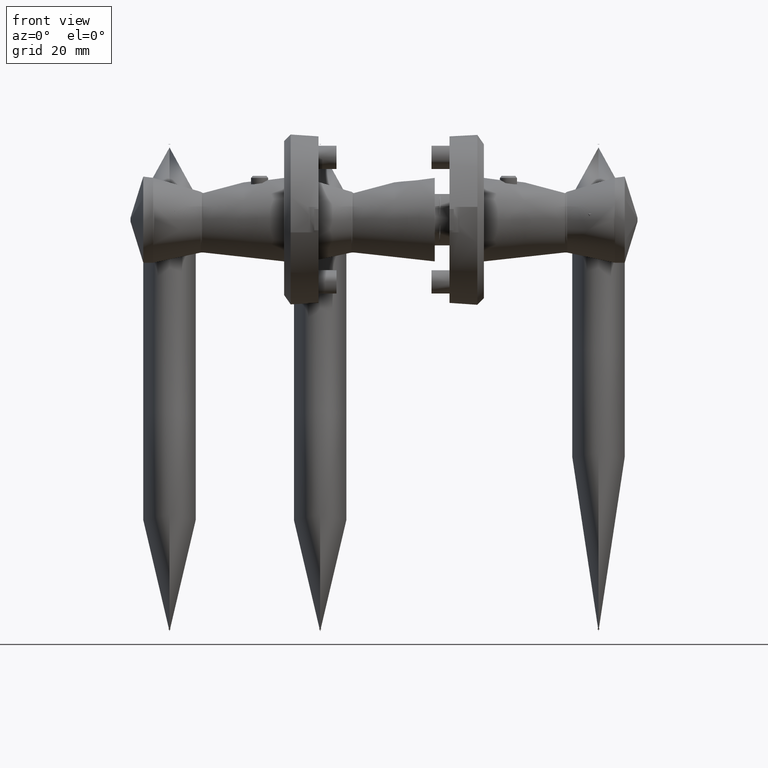
[diagram: clean part render]
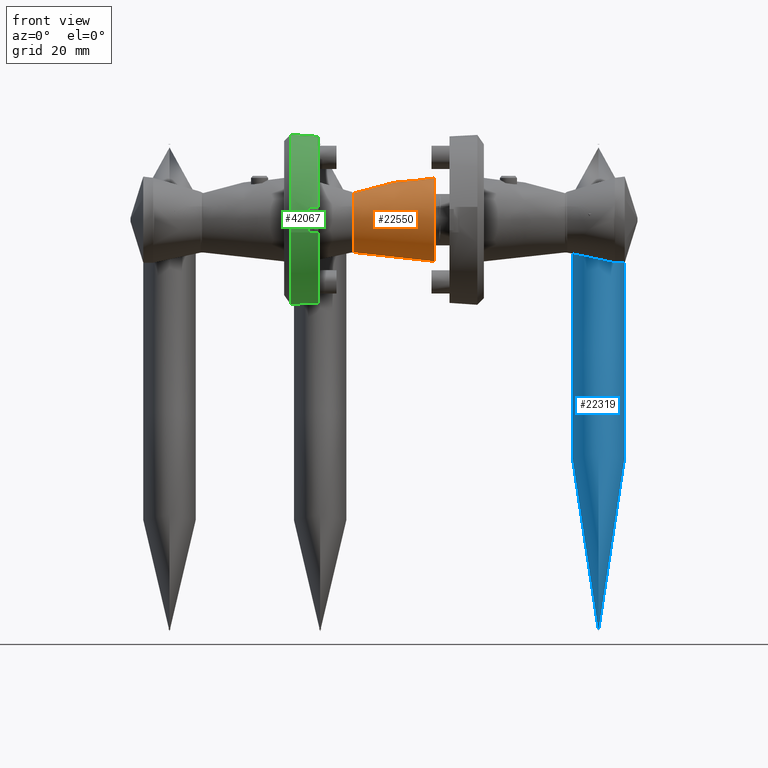
[diagram: same view with three faces highlighted in distinct colors, each labeled with its STEP entity id]
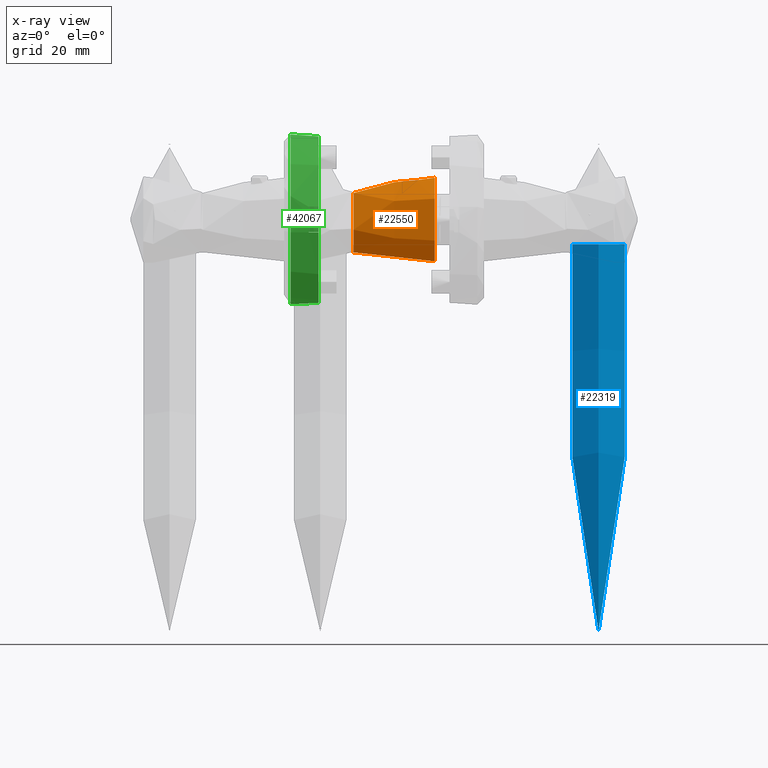
[diagram: x-ray of the same camera — body ghosted, the three highlighted faces saturated]
A machine part, front view with three faces highlighted in distinct colors.
The next image is the same camera in x-ray (body ghosted, the three faces saturated) — at least one of them is partly hidden behind the body in this view.
Their STEP definitions:

[orange] entity #22550 — the highlighted conical surface has half-angle 6.305 deg.
#764 = CIRCLE ( 'NONE', #36495, 12.75000000000000200 ) ;
#920 = CARTESIAN_POINT ( 'NONE',  ( 1.970390120079297000, -2.383240649129006300, 6.705893328067789500 ) ) ;
#1482 = B_SPLINE_CURVE_WITH_KNOTS ( 'NONE', 3,
 ( #44034, #7357, #43873, #33226, #14008, #10765, #40004, #36613, #17742, #43563 ),
 .UNSPECIFIED., .F., .F.,
 ( 4, 2, 2, 2, 4 ),
 ( 1.126841478326089300E-006, 0.0008901840344722032200, 0.001779241227466080200, 0.002668298420459957200, 0.003557355613453834500 ),
 .UNSPECIFIED. ) ;
#1985 = CARTESIAN_POINT ( 'NONE',  ( 1.787579899783449100, -1.877444262398670500, 9.155516655423989300 ) ) ;
#2340 = ORIENTED_EDGE ( 'NONE', *, *, #5339, .F. ) ;
#2767 = CARTESIAN_POINT ( 'NONE',  ( 1.826327214996163600, 0.9758802138837696600, 9.805033096555753500 ) ) ;
#2923 = CARTESIAN_POINT ( 'NONE',  ( 1.797218422732972200, 2.419509968459675700, 8.176533766946313600 ) ) ;
#3345 = DIRECTION ( 'NONE',  ( -1.107270303814983300E-016, -0.0000000000000000000, -1.000000000000000000 ) ) ;
#5194 = DIRECTION ( 'NONE',  ( -1.107270303814983300E-016, -0.0000000000000000000, -1.000000000000000000 ) ) ;
#5339 = EDGE_CURVE ( 'NONE', #27680, #27680, #764, .T. ) ;
#5640 = DIRECTION ( 'NONE',  ( -1.107270303814983300E-016, -0.0000000000000000000, -1.000000000000000000 ) ) ;
#6654 = CARTESIAN_POINT ( 'NONE',  ( 1.951673092279805300, 2.409726096710853100, 6.822971466183603600 ) ) ;
#6669 = CARTESIAN_POINT ( 'NONE',  ( 2.015263648984919600, -2.292189047932426500, 6.472474274148500400 ) ) ;
#6813 = CARTESIAN_POINT ( 'NONE',  ( 1.913201246180474600, 2.464573067750218400, 7.062933539960822800 ) ) ;
#7357 = CARTESIAN_POINT ( 'NONE',  ( 2.252584781965577300, -1.450886988960206500, 5.551923176580833000 ) ) ;
#9121 = CARTESIAN_POINT ( 'NONE',  ( 2.155190998223697200, -1.896942764026276600, 5.852837439392032200 ) ) ;
#9381 = DIRECTION ( 'NONE',  ( -1.000000000000000000, 0.0000000000000000000, 1.107270303814983300E-016 ) ) ;
#9414 = CARTESIAN_POINT ( 'NONE',  ( 1.860854989539590700, -2.511446265999128800, 7.437695297492996200 ) ) ;
#9953 = CIRCLE ( 'NONE', #25885, 10.01209669634193300 ) ;
#10223 = CARTESIAN_POINT ( 'NONE',  ( 2.108044065085002300, 2.047654662641155400, 6.044788084734402200 ) ) ;
#10765 = CARTESIAN_POINT ( 'NONE',  ( 2.366926805108665400, 0.2950574094686491700, 5.277623444824970800 ) ) ;
#12992 = CARTESIAN_POINT ( 'NONE',  ( 1.783206610539916900, -2.032786780753264500, 8.960585587630763600 ) ) ;
#13348 = CONICAL_SURFACE ( 'NONE', #38167, 12.75000000000000200, 0.1100404935467403200 ) ;
#13534 = CARTESIAN_POINT ( 'NONE',  ( 1.785214467934902900, -2.282704414281310400, 8.526990905178907500 ) ) ;
#14008 = CARTESIAN_POINT ( 'NONE',  ( 2.366832780515716500, -0.2979037093821386700, 5.277846696960001100 ) ) ;
#14303 = CARTESIAN_POINT ( 'NONE',  ( 1.830547110098458100, 0.8580169750126678300, 9.851474808103564100 ) ) ;
#14370 = CARTESIAN_POINT ( 'NONE',  ( 1.817401102684685200, -1.201658757475366500, 9.706478102429551700 ) ) ;
#15609 = EDGE_LOOP ( 'NONE', ( #2340 ) ) ;
#15975 = CARTESIAN_POINT ( 'NONE',  ( 1.783148783256296000, -2.228930929522268600, 8.639078714065870900 ) ) ;
#16118 = EDGE_CURVE ( 'NONE', #41074, #30469, #36467, .T. ) ;
#16704 = ORIENTED_EDGE ( 'NONE', *, *, #37535, .F. ) ;
#17297 = CARTESIAN_POINT ( 'NONE',  ( -9.799999999999998900, 0.0000000000000000000, -1.411769637364103800E-015 ) ) ;
#17674 = CARTESIAN_POINT ( 'NONE',  ( 2.200000000006057600, 1.716599942414842800, 5.682505945621458400 ) ) ;
#17742 = CARTESIAN_POINT ( 'NONE',  ( 2.252610252578486300, 1.450758284955500100, 5.551859925902080700 ) ) ;
#17838 = CARTESIAN_POINT ( 'NONE',  ( 1.972257379469037200, 2.373695603428359400, 6.705892082981765900 ) ) ;
#18752 = DIRECTION ( 'NONE',  ( -1.000000000000000000, 0.0000000000000000000, 1.107270303814983300E-016 ) ) ;
#20413 = CARTESIAN_POINT ( 'NONE',  ( 2.200000000000000600, -1.716599942439211800, 5.682505945644474600 ) ) ;
#21013 = CARTESIAN_POINT ( 'NONE',  ( 1.893629226829874700, -2.492275205055193100, 7.185348287252090800 ) ) ;
#21558 = CARTESIAN_POINT ( 'NONE',  ( 1.812584141674933100, 1.307700146452638500, 9.634347173592887600 ) ) ;
#21704 = CARTESIAN_POINT ( 'NONE',  ( 2.015589789617660400, 2.284581882371778100, 6.477393612212019000 ) ) ;
#21825 = EDGE_LOOP ( 'NONE', ( #22657 ) ) ;
#21974 = CARTESIAN_POINT ( 'NONE',  ( 1.803318478968934000, -1.511574302162106400, 9.495188080237735300 ) ) ;
#22550 = ADVANCED_FACE ( 'NONE', ( #32413, #31868, #41657 ), #13348, .T. ) ;
#22657 = ORIENTED_EDGE ( 'NONE', *, *, #39462, .T. ) ;
#24138 = CARTESIAN_POINT ( 'NONE',  ( 1.790862859176077600, -1.792987140412634300, 9.246627745518253500 ) ) ;
#24752 = CARTESIAN_POINT ( 'NONE',  ( 1.845121191370707700, 0.2524059769000088800, 9.999897442523922200 ) ) ;
#25083 = CARTESIAN_POINT ( 'NONE',  ( 1.895182118838286700, 2.483419567688567300, 7.186921326563583200 ) ) ;
#25409 = CARTESIAN_POINT ( 'NONE',  ( 1.817359346263233800, 1.200202442639432000, 9.696595972123594400 ) ) ;
#25678 = CARTESIAN_POINT ( 'NONE',  ( -9.799999999999998900, 0.0000000000000000000, -1.411769637364103800E-015 ) ) ;
#25885 = AXIS2_PLACEMENT_3D ( 'NONE', #27843, #5194, #28016 ) ;
#26266 = CARTESIAN_POINT ( 'NONE',  ( 1.841026717732787500, 0.4997341853177459900, 9.962269959660615000 ) ) ;
#26540 = CARTESIAN_POINT ( 'NONE',  ( 1.827098932592149200, -0.9765485325012753800, 9.815065535866859000 ) ) ;
#27680 = VERTEX_POINT ( 'NONE', #38590 ) ;
#27762 = CARTESIAN_POINT ( 'NONE',  ( 1.812906648289707400, -2.474919609433207800, 7.931297055170131400 ) ) ;
#27843 = CARTESIAN_POINT ( 'NONE',  ( -9.799999999999995400, 0.0000000000000000000, 24.78036290089025700 ) ) ;
#28016 = DIRECTION ( 'NONE',  ( -1.000000000000000000, 0.0000000000000000000, 0.0000000000000000000 ) ) ;
#28657 = CARTESIAN_POINT ( 'NONE',  ( 1.781009145853620100, 2.111963934797421100, 8.860711970546367100 ) ) ;
#28811 = CARTESIAN_POINT ( 'NONE',  ( 1.803234113454864400, 1.513395360231895500, 9.493778326215020200 ) ) ;
#29145 = CARTESIAN_POINT ( 'NONE',  ( 2.155194014972411600, 1.896930622519164700, 5.852825971888918800 ) ) ;
#29925 = EDGE_LOOP ( 'NONE', ( #16704, #31685 ) ) ;
#30469 = VERTEX_POINT ( 'NONE', #20413 ) ;
#31269 = CARTESIAN_POINT ( 'NONE',  ( 2.107469743549121900, -2.049300625353999800, 6.047310530198653400 ) ) ;
#31677 = VERTEX_POINT ( 'NONE', #46495 ) ;
#31685 = ORIENTED_EDGE ( 'NONE', *, *, #16118, .F. ) ;
#31868 = FACE_BOUND ( 'NONE', #21825, .T. ) ;
#32107 = CARTESIAN_POINT ( 'NONE',  ( 1.797043076799997600, -2.418622510360779000, 8.179753044549604700 ) ) ;
#32413 = FACE_BOUND ( 'NONE', #29925, .T. ) ;
#32675 = CARTESIAN_POINT ( 'NONE',  ( 1.863219419415272200, 2.502214694904818100, 7.434329416467013700 ) ) ;
#33226 = CARTESIAN_POINT ( 'NONE',  ( 2.351502824897231400, -0.5997188778949008600, 5.314071730139311000 ) ) ;
#36069 = CARTESIAN_POINT ( 'NONE',  ( 1.798626818482006700, 1.612323353069933500, 9.414691502644645400 ) ) ;
#36223 = CARTESIAN_POINT ( 'NONE',  ( 1.813170725743684000, 2.475501193420321500, 7.927858827292197900 ) ) ;
#36467 = B_SPLINE_CURVE_WITH_KNOTS ( 'NONE', 3,
 ( #17674, #29145, #10223, #43501, #21704, #17838, #6654, #6813, #25083, #32675, #39787, #36223, #2923, #43655, #28657, #40111, #43813, #36069, #28811, #21558, #25409, #2767, #14303, #26266, #24752, #41320, #41624, #26540, #14370, #21974, #37017, #24138, #1985, #12992, #42550, #15975, #13534, #32107, #27762, #9414, #21013, #920, #6669, #31269, #9121, #42404 ),
 .UNSPECIFIED., .F., .F.,
 ( 4, 2, 2, 2, 2, 2, 2, 2, 2, 2, 2, 2, 2, 2, 2, 2, 2, 2, 2, 2, 2, 2, 4 ),
 ( 1.109380190365746300E-006, 0.0007466528040892650000, 0.001119424516038715000, 0.001492196227988164900, 0.001864967939937614900, 0.002237739651887065000, 0.002983283075785961900, 0.003728826499684854000, 0.004101598211634298300, 0.004474369923583741300, 0.004847141635533185200, 0.005219913347482630000, 0.005965456771381517700, 0.006711000195280407200, 0.007456543619179295000, 0.007829315331128738900, 0.008202087043078181900, 0.008574858755027623200, 0.008947630466977066200, 0.009693173890875952200, 0.01043871731477484000, 0.01118426073867372600, 0.01192980416257261400 ),
 .UNSPECIFIED. ) ;
#36495 = AXIS2_PLACEMENT_3D ( 'NONE', #17297, #5640, #9381 ) ;
#36613 = CARTESIAN_POINT ( 'NONE',  ( 2.294489348840294900, 1.173167715911979300, 5.450863680622679100 ) ) ;
#37017 = CARTESIAN_POINT ( 'NONE',  ( 1.798709918688519800, -1.610513770482488600, 9.416182862407851000 ) ) ;
#37535 = EDGE_CURVE ( 'NONE', #30469, #41074, #1482, .T. ) ;
#38167 = AXIS2_PLACEMENT_3D ( 'NONE', #25678, #3345, #18752 ) ;
#38590 = CARTESIAN_POINT ( 'NONE',  ( -22.55000000000000100, 0.0000000000000000000, 0.0000000000000000000 ) ) ;
#39462 = EDGE_CURVE ( 'NONE', #31677, #31677, #9953, .T. ) ;
#39787 = CARTESIAN_POINT ( 'NONE',  ( 1.849219064183951900, 2.502388050700248700, 7.557847881481746900 ) ) ;
#40004 = CARTESIAN_POINT ( 'NONE',  ( 2.352095680124170100, 0.5922769124361415600, 5.312656858608392000 ) ) ;
#40111 = CARTESIAN_POINT ( 'NONE',  ( 1.787500812105227400, 1.879703559828807400, 9.152935785000494200 ) ) ;
#41074 = VERTEX_POINT ( 'NONE', #46593 ) ;
#41320 = CARTESIAN_POINT ( 'NONE',  ( 1.845142520175112200, -0.2503702748737634500, 10.00010214306778000 ) ) ;
#41624 = CARTESIAN_POINT ( 'NONE',  ( 1.841112445750349200, -0.4961539434753729500, 9.963129459866596700 ) ) ;
#41657 = FACE_OUTER_BOUND ( 'NONE', #15609, .T. ) ;
#42404 = CARTESIAN_POINT ( 'NONE',  ( 2.200000000000000600, -1.716599942439211800, 5.682505945644474600 ) ) ;
#42550 = CARTESIAN_POINT ( 'NONE',  ( 1.782129287549239200, -2.104153884588528400, 8.855791221165695500 ) ) ;
#43501 = CARTESIAN_POINT ( 'NONE',  ( 2.038536930960815200, 2.230948605595620500, 6.365098615238879100 ) ) ;
#43563 = CARTESIAN_POINT ( 'NONE',  ( 2.200000000006057600, 1.716599942414842800, 5.682505945621458400 ) ) ;
#43655 = CARTESIAN_POINT ( 'NONE',  ( 1.781317218139212700, 2.239034335412500600, 8.639496235245301700 ) ) ;
#43813 = CARTESIAN_POINT ( 'NONE',  ( 1.790768705868272000, 1.795302156151476400, 9.244282177078055400 ) ) ;
#43873 = CARTESIAN_POINT ( 'NONE',  ( 2.294196611690667800, -1.174633034120115000, 5.451573603672775500 ) ) ;
#44034 = CARTESIAN_POINT ( 'NONE',  ( 2.200000000000000600, -1.716599942439211800, 5.682505945644474600 ) ) ;
#46495 = CARTESIAN_POINT ( 'NONE',  ( -19.81209669634192800, 0.0000000000000000000, 24.78036290089025700 ) ) ;
#46593 = CARTESIAN_POINT ( 'NONE',  ( 2.200000000006057600, 1.716599942414842800, 5.682505945621458400 ) ) ;

[blue] entity #22319 — the highlighted toroidal blend (fillet) surface has major radius 372.822 mm and minor (blend) radius 8 mm.
#239 = CARTESIAN_POINT ( 'NONE',  ( -130.7553704428333700, -10.23532744841338600, -53.55174399026993400 ) ) ;
#396 = CARTESIAN_POINT ( 'NONE',  ( -134.5248093733877400, 1.224529585755842700, -56.36338550772399000 ) ) ;
#553 = CARTESIAN_POINT ( 'NONE',  ( -133.8050850770578700, -0.9634998613971156300, -57.59302793999220400 ) ) ;
#719 = CARTESIAN_POINT ( 'NONE',  ( -132.6752563733535900, -4.398358977401535700, -57.94917119299336200 ) ) ;
#864 = CARTESIAN_POINT ( 'NONE',  ( -133.3273500368760800, -2.415880100215251200, -57.93594900395663000 ) ) ;
#1341 = CARTESIAN_POINT ( 'NONE',  ( -133.6463960938540100, -1.445934882847518900, -42.26667781869616600 ) ) ;
#1493 = CARTESIAN_POINT ( 'NONE',  ( -131.4772147295738300, -8.040690286362771400, -43.63715740601857400 ) ) ;
#1869 = EDGE_CURVE ( 'NONE', #3944, #3944, #39489, .T. ) ;
#3931 = CARTESIAN_POINT ( 'NONE',  ( -135.4202796363295000, 3.946784159330793500, -52.08150161291031600 ) ) ;
#3944 = VERTEX_POINT ( 'NONE', #26682 ) ;
#4263 = CARTESIAN_POINT ( 'NONE',  ( -130.5855359608337900, -10.75168424532001800, -52.07359902210246400 ) ) ;
#4444 = CARTESIAN_POINT ( 'NONE',  ( -17.30000000000003600, 15.00000000000001800, -50.00000000000000000 ) ) ;
#4575 = CARTESIAN_POINT ( 'NONE',  ( -135.1658893093051000, 3.173442236395523700, -54.00893983196605300 ) ) ;
#4899 = CARTESIAN_POINT ( 'NONE',  ( -135.1664146247906300, 3.175038937031649400, -45.99401845171071600 ) ) ;
#5092 = DIRECTION ( 'NONE',  ( 0.0000000000000000000, 1.000000000000000000, 0.0000000000000000000 ) ) ;
#5222 = CARTESIAN_POINT ( 'NONE',  ( -134.8829990901373000, 2.313446035778720800, -44.70856418451037900 ) ) ;
#5391 = CARTESIAN_POINT ( 'NONE',  ( -132.1973670384388100, -5.851246447322114200, -42.42030764259841600 ) ) ;
#7682 = CARTESIAN_POINT ( 'NONE',  ( -130.5016283094325000, -11.00679265417523200, -50.53429840589806300 ) ) ;
#7837 = CARTESIAN_POINT ( 'NONE',  ( -132.3531625048165400, -5.377592530188994000, -57.73098105554301200 ) ) ;
#8165 = CARTESIAN_POINT ( 'NONE',  ( -134.3216846619339200, 0.6070144084134275800, -56.79752138277972100 ) ) ;
#8214 = ORIENTED_EDGE ( 'NONE', *, *, #13990, .T. ) ;
#8325 = CARTESIAN_POINT ( 'NONE',  ( -131.7517217284155300, -7.206119383070021200, -56.93393635073911700 ) ) ;
#8635 = CARTESIAN_POINT ( 'NONE',  ( -135.5008622636910300, 4.191764521283194400, -49.47165467214148300 ) ) ;
#8796 = CARTESIAN_POINT ( 'NONE',  ( -134.5222918167577000, 1.216875215979820800, -43.64634751260587100 ) ) ;
#8958 = CARTESIAN_POINT ( 'NONE',  ( -135.1239312290905200, 3.045888657239155700, -45.76743086684737700 ) ) ;
#9112 = CARTESIAN_POINT ( 'NONE',  ( -133.8815666327029700, -0.7309876994758064400, -42.50809121665323400 ) ) ;
#11403 = CARTESIAN_POINT ( 'NONE',  ( -130.6296584496951400, -10.61753531959749700, -47.41817464729690800 ) ) ;
#11727 = CARTESIAN_POINT ( 'NONE',  ( -131.8960085636254900, -6.767449700268115500, -57.18047820266223600 ) ) ;
#11872 = CARTESIAN_POINT ( 'NONE',  ( -135.2432953694328100, 3.408757879144750400, -53.54652429186264600 ) ) ;
#12189 = CARTESIAN_POINT ( 'NONE',  ( -135.2435385865005600, 3.409497521220926400, -46.45511033736774200 ) ) ;
#12511 = CARTESIAN_POINT ( 'NONE',  ( -132.3541399448265600, -5.374621055315426300, -42.26816210914800100 ) ) ;
#12665 = CARTESIAN_POINT ( 'NONE',  ( -133.8036176164793000, -0.9679617249404858200, -42.41891313449252000 ) ) ;
#13990 = EDGE_CURVE ( 'NONE', #20753, #20753, #17926, .T. ) ;
#15120 = CARTESIAN_POINT ( 'NONE',  ( -133.4089641957964400, -2.167760979065640000, -57.89712706022851300 ) ) ;
#15288 = CARTESIAN_POINT ( 'NONE',  ( -130.5013794851748500, -11.00754788502805900, -49.47774316555440100 ) ) ;
#15441 = CARTESIAN_POINT ( 'NONE',  ( -130.8777540648578400, -9.863239344616070900, -45.77078371870472000 ) ) ;
#15598 = CARTESIAN_POINT ( 'NONE',  ( -135.1238707576338500, 3.045702408534092200, -54.23270888852976400 ) ) ;
#15761 = CARTESIAN_POINT ( 'NONE',  ( -133.0818396052414400, -3.162270774585462800, -58.00007896520023100 ) ) ;
#17926 = CIRCLE ( 'NONE', #32175, 8.000000000000001800 ) ;
#18861 = CARTESIAN_POINT ( 'NONE',  ( -132.4333378933857300, -5.133841862922467100, -57.79533523669655900 ) ) ;
#19013 = CARTESIAN_POINT ( 'NONE',  ( -133.6493204101423100, -1.437043380212774900, -57.74401966894170400 ) ) ;
#19173 = TOROIDAL_SURFACE ( 'NONE', #35719, 372.8223684210525400, 8.000000000000001800 ) ;
#19341 = CARTESIAN_POINT ( 'NONE',  ( -135.4843127502641400, 4.141461617711027700, -51.05704982103637900 ) ) ;
#19648 = CARTESIAN_POINT ( 'NONE',  ( -133.5671446921728000, -1.686869728467709400, -42.20343980279855600 ) ) ;
#19811 = CARTESIAN_POINT ( 'NONE',  ( -135.3132721607969400, 3.621488924708544200, -46.92622371829327200 ) ) ;
#20129 = CARTESIAN_POINT ( 'NONE',  ( -134.2518951463002600, 0.3948486934386349300, -43.05377632502522500 ) ) ;
#20753 = VERTEX_POINT ( 'NONE', #24068 ) ;
#22319 = ADVANCED_FACE ( 'NONE', ( #34765, #42829 ), #19173, .T. ) ;
#22396 = CARTESIAN_POINT ( 'NONE',  ( -131.0136851148836000, -9.449953058201298700, -54.88000443802775400 ) ) ;
#22548 = CARTESIAN_POINT ( 'NONE',  ( -134.0319842447744600, -0.2737018368974387700, -57.29274589012496900 ) ) ;
#22710 = CARTESIAN_POINT ( 'NONE',  ( -130.5818584307602900, -10.76286394841438100, -47.91981438792486600 ) ) ;
#22862 = CARTESIAN_POINT ( 'NONE',  ( -130.6332046535440300, -10.60675251701019800, -52.57596129546684700 ) ) ;
#23010 = CARTESIAN_POINT ( 'NONE',  ( -134.1068790554072300, -0.04601408955676068700, -57.17952253905843900 ) ) ;
#23174 = CARTESIAN_POINT ( 'NONE',  ( -135.5008623718547400, 4.191764485895905800, -50.00000000101987000 ) ) ;
#23491 = CARTESIAN_POINT ( 'NONE',  ( -132.6726958401991100, -4.406138544479405900, -42.05225893693253900 ) ) ;
#23649 = CARTESIAN_POINT ( 'NONE',  ( -134.7100852186351300, 1.787779330881716000, -44.15579504444304600 ) ) ;
#24068 = CARTESIAN_POINT ( 'NONE',  ( -17.30000000000003600, 23.00000000000002100, -50.00000000000000000 ) ) ;
#26113 = CARTESIAN_POINT ( 'NONE',  ( -130.5657029879452900, -10.81198334857719300, -51.82023667152982000 ) ) ;
#26276 = CARTESIAN_POINT ( 'NONE',  ( -134.8844117728481300, 2.317740854395008700, -55.28691848400796300 ) ) ;
#26428 = CARTESIAN_POINT ( 'NONE',  ( -130.8322061053805200, -10.00173481379704500, -54.01094755982902000 ) ) ;
#26588 = CARTESIAN_POINT ( 'NONE',  ( -134.9880669066610600, 2.632861019210599000, -54.88215889627215900 ) ) ;
#26682 = CARTESIAN_POINT ( 'NONE',  ( -135.5008623718547400, 4.191764485895906700, -50.00000000101987000 ) ) ;
#26747 = CARTESIAN_POINT ( 'NONE',  ( -135.5008623718547400, 4.191764485895905800, -50.00000000101987000 ) ) ;
#27210 = CARTESIAN_POINT ( 'NONE',  ( -134.4558833251341200, 1.014988988276718500, -43.48907452734079700 ) ) ;
#27390 = CARTESIAN_POINT ( 'NONE',  ( -132.4332490239934500, -5.134114613974933400, -42.20482119385424400 ) ) ;
#27540 = CARTESIAN_POINT ( 'NONE',  ( -131.1179304852203100, -9.133026891186544200, -44.71352873639966000 ) ) ;
#28398 = CARTESIAN_POINT ( 'NONE',  ( -17.29999999999997600, -357.8223684210525400, -50.00000000000000000 ) ) ;
#29849 = CARTESIAN_POINT ( 'NONE',  ( -135.2787845897106000, 3.516645931449085900, -53.30680603306940000 ) ) ;
#29992 = DIRECTION ( 'NONE',  ( -1.232595164407830900E-031, 2.588151322293163600E-032, -1.000000000000000000 ) ) ;
#29998 = CARTESIAN_POINT ( 'NONE',  ( -134.6510397905754200, 1.608278123953560200, -56.03296200360920000 ) ) ;
#30159 = CARTESIAN_POINT ( 'NONE',  ( -130.8351512722153400, -9.992767419480701500, -45.99823080069914700 ) ) ;
#30315 = CARTESIAN_POINT ( 'NONE',  ( -135.3729692297255600, 3.802968770915273700, -52.57997758466024900 ) ) ;
#30462 = CARTESIAN_POINT ( 'NONE',  ( -133.1635325216030900, -2.913911164214115300, -57.98743971017021400 ) ) ;
#30786 = CARTESIAN_POINT ( 'NONE',  ( -132.1193395004006600, -6.088468529863943600, -42.50968886980678700 ) ) ;
#30946 = CARTESIAN_POINT ( 'NONE',  ( -131.8921126335600600, -6.779293843292857800, -42.81126706862957600 ) ) ;
#31092 = CARTESIAN_POINT ( 'NONE',  ( -134.9865923498448100, 2.628373268341694000, -45.11109011201615700 ) ) ;
#31257 = CARTESIAN_POINT ( 'NONE',  ( -133.1652859959686700, -2.908579250213870500, -41.99986708401790700 ) ) ;
#31378 = EDGE_LOOP ( 'NONE', ( #8214 ) ) ;
#32175 = AXIS2_PLACEMENT_3D ( 'NONE', #4444, #45474, #5092 ) ;
#33537 = CARTESIAN_POINT ( 'NONE',  ( -130.5174539093443700, -10.95867659724159500, -48.95472472428928500 ) ) ;
#33693 = CARTESIAN_POINT ( 'NONE',  ( -131.3499555643067300, -8.427600402461694200, -56.02879783359577500 ) ) ;
#33851 = CARTESIAN_POINT ( 'NONE',  ( -132.8373906771667800, -3.905440496144248400, -57.99984095897183100 ) ) ;
#34155 = CARTESIAN_POINT ( 'NONE',  ( -132.1967313264114500, -5.853179329591431400, -57.57898270255141400 ) ) ;
#34315 = CARTESIAN_POINT ( 'NONE',  ( -135.4161180040735000, 3.934141188957087200, -47.91810952457179000 ) ) ;
#34631 = CARTESIAN_POINT ( 'NONE',  ( -134.1083242292988300, -0.04161993671865027400, -42.80848080596505400 ) ) ;
#34765 = FACE_OUTER_BOUND ( 'NONE', #37320, .T. ) ;
#34805 = CARTESIAN_POINT ( 'NONE',  ( -135.4363270659884800, 3.995577133925748200, -48.17486701868351400 ) ) ;
#34960 = CARTESIAN_POINT ( 'NONE',  ( -131.3485717300532900, -8.431808098377146600, -43.97505578555755100 ) ) ;
#35719 = AXIS2_PLACEMENT_3D ( 'NONE', #28398, #29992, #42048 ) ;
#37320 = EDGE_LOOP ( 'NONE', ( #45992 ) ) ;
#37387 = CARTESIAN_POINT ( 'NONE',  ( -130.6611719267282300, -10.52172355000780800, -52.82560427829744000 ) ) ;
#37548 = CARTESIAN_POINT ( 'NONE',  ( -131.6807307620731800, -7.421950744111915000, -56.79790050532675800 ) ) ;
#37853 = CARTESIAN_POINT ( 'NONE',  ( -131.4758026327317000, -8.044989110809213500, -56.35967434323890000 ) ) ;
#38338 = CARTESIAN_POINT ( 'NONE',  ( -135.4846660128010000, 4.142527106898290500, -48.94935163743472400 ) ) ;
#39489 = B_SPLINE_CURVE_WITH_KNOTS ( 'NONE', 3,
 ( #26747, #41423, #19341, #3931, #30315, #29849, #11872, #4575, #15598, #26588, #26276, #29998, #396, #8165, #45128, #23010, #22548, #553, #19013, #15120, #864, #30462, #15761, #33851, #719, #18861, #7837, #34155, #41582, #44822, #11727, #8325, #37548, #37853, #33693, #44507, #22396, #26428, #239, #37387, #22862, #4263, #26113, #41105, #7682, #15288, #33537, #22710, #11403, #40945, #44674, #30159, #15441, #41275, #27540, #34960, #1493, #45766, #30946, #30786, #5391, #12511, #27390, #23491, #45598, #31257, #41745, #19648, #1341, #12665, #9112, #34631, #20129, #27210, #8796, #45286, #23649, #5222, #31092, #8958, #4899, #12189, #19811, #41894, #34315, #34805, #38338, #8635, #23174 ),
 .UNSPECIFIED., .T., .F.,
 ( 4, 2, 2, 2, 2, 2, 2, 2, 2, 2, 2, 2, 2, 2, 2, 2, 2, 2, 2, 2, 2, 2, 2, 2, 2, 2, 2, 2, 2, 2, 2, 2, 2, 2, 2, 2, 2, 2, 2, 2, 2, 1, 2, 2, 4 ),
 ( 0.0000000000000000000, 0.001582840822026173300, 0.003165681644052346700, 0.003957102055065432800, 0.004748522466078520200, 0.006331363288104676800, 0.007914204110130832600, 0.008705624521143911400, 0.009497044932156988400, 0.01107988575418314600, 0.01187130616519622300, 0.01266272657620930000, 0.01424556739823542400, 0.01503698780924848800, 0.01582840822026154700, 0.01661982863127460900, 0.01741124904228767000, 0.01899408986431379300, 0.02057693068633991600, 0.02215977150836603800, 0.02295119191937908900, 0.02374261233039214000, 0.02532545315241825600, 0.02690829397444438300, 0.02849113479647050200, 0.02928255520748354600, 0.03007397561849659700, 0.03165681644052270600, 0.03323965726254882200, 0.03482249808457493100, 0.03561391849558798900, 0.03640533890660104700, 0.03798817972862716200, 0.03957102055065327800, 0.04036244096166633600, 0.04115386137267940100, 0.04273670219470551000, 0.04352812260571855400, 0.04431954301673160500, 0.04590238383875770700, 0.04669380424977076500, 0.04748522466078381600, 0.04827664507179686700, 0.04906806548280991800, 0.05065090630483600600 ),
 .UNSPECIFIED. ) ;
#40945 = CARTESIAN_POINT ( 'NONE',  ( -130.7231290300427100, -10.33335255855968700, -46.69637174128729400 ) ) ;
#41105 = CARTESIAN_POINT ( 'NONE',  ( -130.5179383602237200, -10.95720145478632200, -51.05375316739876000 ) ) ;
#41275 = CARTESIAN_POINT ( 'NONE',  ( -131.0145643199624600, -9.447295874040271700, -45.11608885766645500 ) ) ;
#41423 = CARTESIAN_POINT ( 'NONE',  ( -135.5008624800184400, 4.191764450508618000, -50.52834532989827900 ) ) ;
#41582 = CARTESIAN_POINT ( 'NONE',  ( -132.1200455950520100, -6.086329090548139800, -57.49108959330489200 ) ) ;
#41745 = CARTESIAN_POINT ( 'NONE',  ( -133.3275171633074200, -2.415371093259744800, -42.05138658151270900 ) ) ;
#41894 = CARTESIAN_POINT ( 'NONE',  ( -135.3684057232502500, 3.789095505493874900, -47.41713496819854600 ) ) ;
#42048 = DIRECTION ( 'NONE',  ( 1.000000000000000000, 3.190142804614287000E-063, -1.232595164407830900E-031 ) ) ;
#42829 = FACE_OUTER_BOUND ( 'NONE', #31378, .T. ) ;
#44507 = CARTESIAN_POINT ( 'NONE',  ( -131.1192974801954600, -9.128871239242645400, -55.29141846800619900 ) ) ;
#44674 = CARTESIAN_POINT ( 'NONE',  ( -130.7579687984529400, -10.22742780352832900, -46.46046821359834700 ) ) ;
#44822 = CARTESIAN_POINT ( 'NONE',  ( -131.9696799295165600, -6.543462849847294600, -57.29183730431668700 ) ) ;
#45128 = CARTESIAN_POINT ( 'NONE',  ( -134.2516629494348900, 0.3941425089594082800, -56.93190790346614000 ) ) ;
#45286 = CARTESIAN_POINT ( 'NONE',  ( -134.6495055040966000, 1.603613569262942100, -43.98010344583841700 ) ) ;
#45474 = DIRECTION ( 'NONE',  ( -1.000000000000000000, 1.387778780781445400E-016, -1.479114197289396700E-031 ) ) ;
#45598 = CARTESIAN_POINT ( 'NONE',  ( -132.8356858763141600, -3.910622490607091400, -42.00013342599691400 ) ) ;
#45766 = CARTESIAN_POINT ( 'NONE',  ( -131.7485893640484300, -7.215647459792824800, -43.05713716526667400 ) ) ;
#45992 = ORIENTED_EDGE ( 'NONE', *, *, #1869, .F. ) ;

[green] entity #42067 — the highlighted cylindrical surface (bore or boss wall) has radius 26 mm, axis along (1, 0, -0).
#4013 = CARTESIAN_POINT ( 'NONE',  ( 3.900000000000000400, -25.70583591327074700, -1.734723475976807100E-015 ) ) ;
#4684 = EDGE_CURVE ( 'NONE', #41128, #18049, #16387, .T. ) ;
#4766 = ORIENTED_EDGE ( 'NONE', *, *, #26531, .T. ) ;
#5757 = DIRECTION ( 'NONE',  ( 0.0000000000000000000, 0.0000000000000000000, 1.000000000000000000 ) ) ;
#6460 = AXIS2_PLACEMENT_3D ( 'NONE', #42944, #13554, #31981 ) ;
#8122 = DIRECTION ( 'NONE',  ( -0.0000000000000000000, -0.0000000000000000000, -1.000000000000000000 ) ) ;
#8829 = CYLINDRICAL_SURFACE ( 'NONE', #18194, 26.00000000000000400 ) ;
#10747 = EDGE_CURVE ( 'NONE', #43556, #41128, #42916, .T. ) ;
#12051 = CARTESIAN_POINT ( 'NONE',  ( -3.899999999999999900, -25.70583591327074700, -1.283785409773493500E-015 ) ) ;
#13554 = DIRECTION ( 'NONE',  ( 0.0000000000000000000, 0.0000000000000000000, 1.000000000000000000 ) ) ;
#14278 = DIRECTION ( 'NONE',  ( -0.0000000000000000000, -0.0000000000000000000, -1.000000000000000000 ) ) ;
#14882 = VERTEX_POINT ( 'NONE', #28277 ) ;
#16387 = CIRCLE ( 'NONE', #34019, 26.00000000000000400 ) ;
#17107 = CARTESIAN_POINT ( 'NONE',  ( 0.0000000000000000000, 0.0000000000000000000, 2.999999999999998200 ) ) ;
#17115 = DIRECTION ( 'NONE',  ( 1.000000000000000000, 0.0000000000000000000, 0.0000000000000000000 ) ) ;
#18026 = DIRECTION ( 'NONE',  ( 0.0000000000000000000, 0.0000000000000000000, 1.000000000000000000 ) ) ;
#18049 = VERTEX_POINT ( 'NONE', #45006 ) ;
#18194 = AXIS2_PLACEMENT_3D ( 'NONE', #18820, #8122, #44630 ) ;
#18820 = CARTESIAN_POINT ( 'NONE',  ( 0.0000000000000000000, 0.0000000000000000000, 10.50000000000000000 ) ) ;
#22717 = VECTOR ( 'NONE', #18026, 1000.000000000000000 ) ;
#24163 = ORIENTED_EDGE ( 'NONE', *, *, #33454, .T. ) ;
#26531 = EDGE_CURVE ( 'NONE', #18049, #44972, #47843, .T. ) ;
#28277 = CARTESIAN_POINT ( 'NONE',  ( 26.00000000000000400, 0.0000000000000000000, 8.500000000000000000 ) ) ;
#28416 = DIRECTION ( 'NONE',  ( -0.0000000000000000000, -0.0000000000000000000, -1.000000000000000000 ) ) ;
#28536 = CARTESIAN_POINT ( 'NONE',  ( -3.899999999999999900, -25.70583591327074300, 10.50000000000000000 ) ) ;
#31646 = DIRECTION ( 'NONE',  ( 1.000000000000000000, 0.0000000000000000000, 0.0000000000000000000 ) ) ;
#31897 = CIRCLE ( 'NONE', #42994, 26.00000000000000400 ) ;
#31981 = DIRECTION ( 'NONE',  ( 1.000000000000000000, 0.0000000000000000000, 0.0000000000000000000 ) ) ;
#32274 = VECTOR ( 'NONE', #14278, 1000.000000000000000 ) ;
#33454 = EDGE_CURVE ( 'NONE', #14882, #14882, #31897, .T. ) ;
#34019 = AXIS2_PLACEMENT_3D ( 'NONE', #17107, #5757, #31646 ) ;
#34054 = CIRCLE ( 'NONE', #6460, 26.00000000000000400 ) ;
#34644 = EDGE_LOOP ( 'NONE', ( #36413, #47799, #4766, #36751 ) ) ;
#36006 = FACE_OUTER_BOUND ( 'NONE', #42692, .T. ) ;
#36403 = CARTESIAN_POINT ( 'NONE',  ( 3.899999999999998600, -25.70583591327074300, 10.50000000000000000 ) ) ;
#36413 = ORIENTED_EDGE ( 'NONE', *, *, #10747, .T. ) ;
#36751 = ORIENTED_EDGE ( 'NONE', *, *, #47137, .T. ) ;
#39382 = CARTESIAN_POINT ( 'NONE',  ( 0.0000000000000000000, 0.0000000000000000000, 8.500000000000000000 ) ) ;
#41128 = VERTEX_POINT ( 'NONE', #42429 ) ;
#41184 = FACE_OUTER_BOUND ( 'NONE', #34644, .T. ) ;
#42067 = ADVANCED_FACE ( 'NONE', ( #36006, #41184 ), #8829, .T. ) ;
#42429 = CARTESIAN_POINT ( 'NONE',  ( -3.899999999999999900, -25.70583591327074300, 2.999999999999998200 ) ) ;
#42692 = EDGE_LOOP ( 'NONE', ( #24163 ) ) ;
#42916 = LINE ( 'NONE', #28536, #22717 ) ;
#42944 = CARTESIAN_POINT ( 'NONE',  ( 0.0000000000000000000, 0.0000000000000000000, 0.0000000000000000000 ) ) ;
#42994 = AXIS2_PLACEMENT_3D ( 'NONE', #39382, #28416, #17115 ) ;
#43556 = VERTEX_POINT ( 'NONE', #12051 ) ;
#44630 = DIRECTION ( 'NONE',  ( -1.000000000000000000, 0.0000000000000000000, 0.0000000000000000000 ) ) ;
#44972 = VERTEX_POINT ( 'NONE', #4013 ) ;
#45006 = CARTESIAN_POINT ( 'NONE',  ( 3.899999999999999900, -25.70583591327074300, 2.999999999999998200 ) ) ;
#47137 = EDGE_CURVE ( 'NONE', #44972, #43556, #34054, .T. ) ;
#47799 = ORIENTED_EDGE ( 'NONE', *, *, #4684, .T. ) ;
#47843 = LINE ( 'NONE', #36403, #32274 ) ;